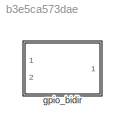
MODEL slx_b3e5ca573dae
KIND model
CONFIG AbsTol = auto
CONFIG EnableMultiTasking = off
CONFIG FixedStep = auto
CONFIG MaxStep = auto
CONFIG MinStep = auto
CONFIG RelTol = 1e-3
CONFIG SampleTimeConstraint = Unconstrained
CONFIG Solver = VariableStepAuto
CONFIG SolverName = VariableStepAuto
CONFIG StartTime = 0.0
CONFIG StopTime = 10.0
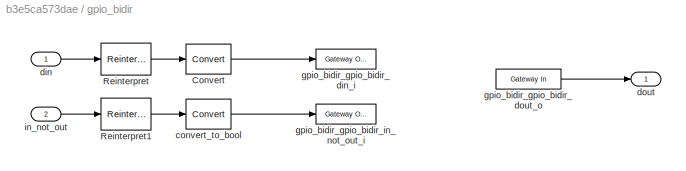
BLOCK [SubSystem] gpio_bidir
  Ports = [2, 1]
  RequestExecContextInheritance = off
  Tag = xps:gpio_bidir
  Variant = off
BLOCK [Reference] gpio_bidir/Convert  REF=xbsIndex_r4/Convert
  Ports = [1, 1]
  SourceBlock = xbsIndex_r4/Convert
  SourceType = Xilinx Type Converter Block
BLOCK [Reference] gpio_bidir/Reinterpret  REF=xbsIndex_r4/Reinterpret
  Ports = [1, 1]
  SourceBlock = xbsIndex_r4/Reinterpret
  SourceType = Xilinx Type Reinterpreter Block
BLOCK [Reference] gpio_bidir/Reinterpret1  REF=xbsIndex_r4/Reinterpret
  Ports = [1, 1]
  SourceBlock = xbsIndex_r4/Reinterpret
  SourceType = Xilinx Type Reinterpreter Block
BLOCK [Reference] gpio_bidir/convert_to_bool  REF=xbsIndex_r4/Convert
  Ports = [1, 1]
  SourceBlock = xbsIndex_r4/Convert
  SourceType = Xilinx Type Converter Block
BLOCK [Inport] gpio_bidir/din
  IconDisplay = Port number
BLOCK [Outport] gpio_bidir/dout
  IconDisplay = Port number
BLOCK [Reference] gpio_bidir/gpio_bidir_gpio_bidir_din_i  REF=xbsIndex_r4/Gateway Out
  Ports = [1, 1]
  SourceBlock = xbsIndex_r4/Gateway Out
  SourceType = Xilinx Gateway Out Block
BLOCK [Reference] gpio_bidir/gpio_bidir_gpio_bidir_dout_o  REF=xbsIndex_r4/Gateway In
  Ports = [1, 1]
  SourceBlock = xbsIndex_r4/Gateway In
  SourceType = Xilinx Gateway In Block
BLOCK [Reference] gpio_bidir/gpio_bidir_gpio_bidir_in_not_out_i  REF=xbsIndex_r4/Gateway Out
  Ports = [1, 1]
  SourceBlock = xbsIndex_r4/Gateway Out
  SourceType = Xilinx Gateway Out Block
BLOCK [Inport] gpio_bidir/in_not_out
  IconDisplay = Port number
  Port = 2
LINE gpio_bidir/Convert:1 -> gpio_bidir/gpio_bidir_gpio_bidir_din_i:1
LINE gpio_bidir/Reinterpret1:1 -> gpio_bidir/convert_to_bool:1
LINE gpio_bidir/Reinterpret:1 -> gpio_bidir/Convert:1
LINE gpio_bidir/convert_to_bool:1 -> gpio_bidir/gpio_bidir_gpio_bidir_in_not_out_i:1
LINE gpio_bidir/din:1 -> gpio_bidir/Reinterpret:1
LINE gpio_bidir/gpio_bidir_gpio_bidir_dout_o:1 -> gpio_bidir/dout:1
LINE gpio_bidir/in_not_out:1 -> gpio_bidir/Reinterpret1:1
